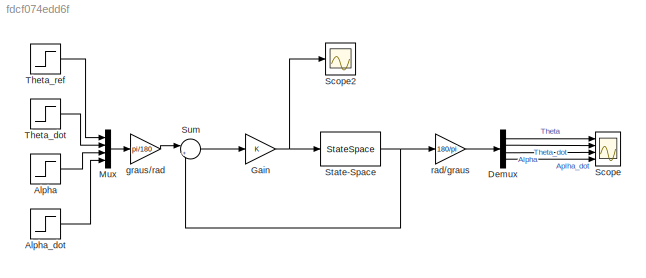
MODEL slx_fdcf074edd6f
KIND model
CONFIG AbsTol = auto
CONFIG EnableMultiTasking = off
CONFIG FixedStep = auto
CONFIG MaxStep = auto
CONFIG MinStep = auto
CONFIG RelTol = 1e-3
CONFIG SampleTimeConstraint = Unconstrained
CONFIG Solver = VariableStepAuto
CONFIG SolverName = VariableStepAuto
CONFIG StartTime = 0.0
CONFIG StopTime = 10.0
BLOCK [Step] Alpha
  After = 0
  SampleTime = 0
  Time = 0.5
BLOCK [Step] Alpha_dot
  After = 0
  SampleTime = 0
BLOCK [Demux] Demux
  Ports = [1, 4]
BLOCK [Gain] Gain
  Gain = K
  Multiplication = Matrix(K*u)
BLOCK [Mux] Mux
  DisplayOption = bar
  Ports = [4, 1]
BLOCK [Scope] Scope
  Floating = off
  NumInputPorts = 4
  Ports = [4]
  ScopeSpecificationString = Simulink.scopes.TimeScopeBlockCfg('CurrentConfiguration', extmgr.ConfigurationSet(extmgr.Configuration('Core','General UI',true),extmgr.Configuration('Core','Source UI',true),extmgr.Configuration('Sources','WiredSimulink',true),extmgr.Configuration('Visuals','Time Domain',true,'SerializedDisplays',{struct('MinYLimReal','-13.2513','MaxYLimReal','70.86652','YLabelReal','','MinYLimMag','0.00000','Max...<+1551ch>
BLOCK [Scope] Scope2
  Floating = off
  NumInputPorts = 1
  Ports = [1]
  ScopeSpecificationString = Simulink.scopes.TimeScopeBlockCfg('CurrentConfiguration', extmgr.ConfigurationSet(extmgr.Configuration('Core','General UI',true),extmgr.Configuration('Core','Source UI',true),extmgr.Configuration('Sources','WiredSimulink',true,'DataLoggingVariableName','ScopeData2'),extmgr.Configuration('Visuals','Time Domain',true,'SerializedDisplays',{struct('MinYLimReal','-4.02995','MaxYLimReal','3.15422','YLab...<+1393ch>
BLOCK [StateSpace] State-Space
  A = A
  B = B
  C = eye(4)
  D = zeros(4,1)
  InitialCondition = 0
  Ports = [1, 1]
BLOCK [Sum] Sum
  Inputs = |+-
  Ports = [2, 1]
BLOCK [Step] Theta_dot
  After = 0
  SampleTime = 0
BLOCK [Step] Theta_ref
  After = 60
  SampleTime = 0
BLOCK [Gain] graus//rad
  Gain = pi/180
BLOCK [Gain] rad//graus
  Gain = 180/pi
LINE Alpha:1 -> Mux:3
LINE Alpha_dot:1 -> Mux:4
LINE Demux:1 -> Scope:1
LINE Demux:2 -> Scope:2
LINE Demux:3 -> Scope:3
LINE Demux:4 -> Scope:4
NET Gain:1 -> Scope2:1, State-Space:1
LINE Mux:1 -> graus//rad:1
NET State-Space:1 -> Sum:2, rad//graus:1
LINE Sum:1 -> Gain:1
LINE Theta_dot:1 -> Mux:2
LINE Theta_ref:1 -> Mux:1
LINE graus//rad:1 -> Sum:1
LINE rad//graus:1 -> Demux:1
note: NET lines group one-source signal fan-out (src -> all destinations, sorted); 1:1 wires keep LINE
